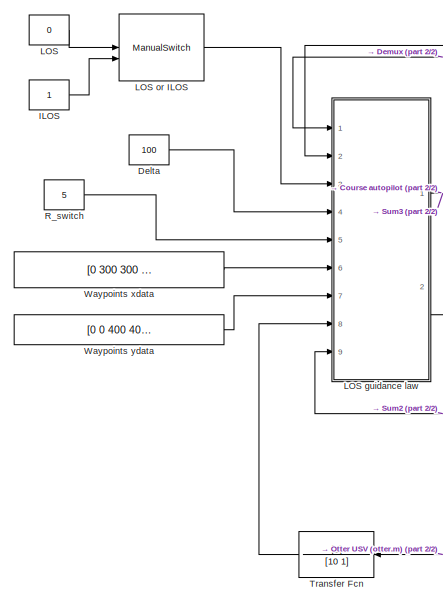
[diagram: root canvas - part 1/2, left side, full height]
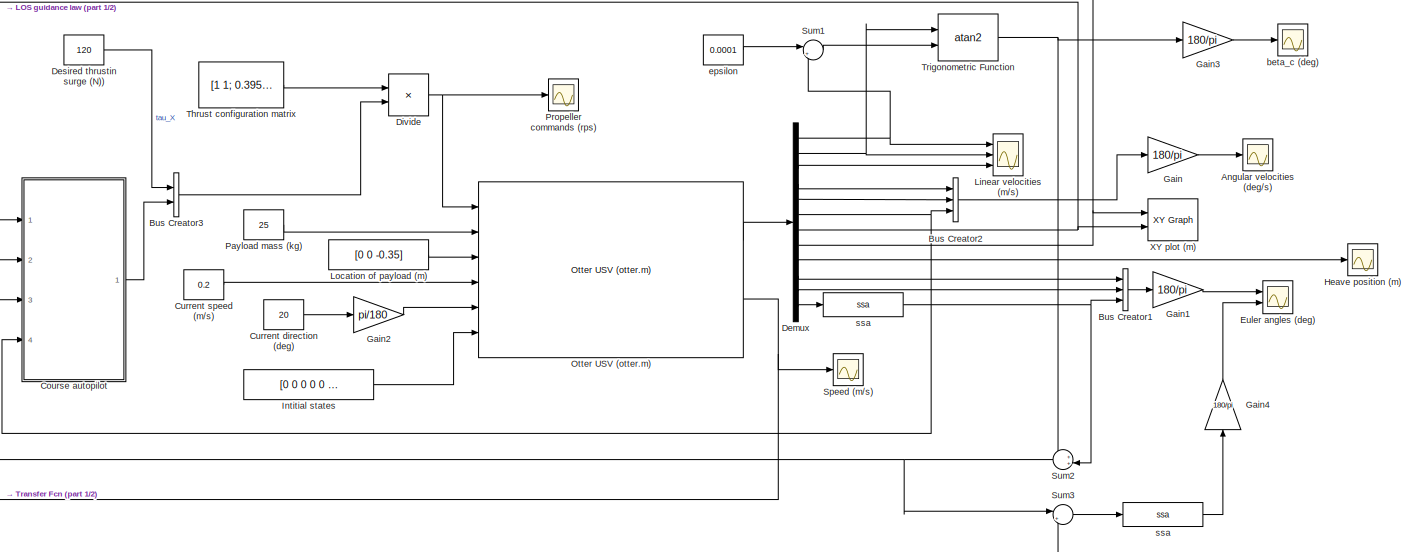
[diagram: root canvas - part 2/2, center side, full height]
MODEL slx_7d4d9d8b1aa5
KIND model
CONFIG AbsTol = auto
CONFIG EnableMultiTasking = off
CONFIG FixedStep = 0.05
CONFIG MaxStep = auto
CONFIG MinStep = auto
CONFIG RelTol = 1e-3
CONFIG SampleTimeConstraint = Unconstrained
CONFIG SolverName = ode4
CONFIG StartTime = 0.0
CONFIG StopTime = 2000
BLOCK [Scope] Angular velocities (deg//s)
  Floating = off
  NumInputPorts = 1
  Ports = [1]
  ScopeSpecificationString = Simulink.scopes.TimeScopeBlockCfg('CurrentConfiguration', extmgr.ConfigurationSet(extmgr.Configuration('Core','General UI',true),extmgr.Configuration('Core','Source UI',true),extmgr.Configuration('Sources','WiredSimulink',true,'DataLoggingVariableName','ScopeData3'),extmgr.Configuration('Visuals','Time Domain',true,'SerializedDisplays',{struct('MinYLimReal','-37.06921','MaxYLimReal','21.94874','YL...<+1463ch>
BLOCK [BusCreator] Bus Creator1
  DisplayOption = bar
  InheritFromInputs = on
  Inputs = 3
  Ports = [3, 1]
BLOCK [BusCreator] Bus Creator2
  DisplayOption = bar
  InheritFromInputs = on
  Inputs = 3
  Ports = [3, 1]
BLOCK [BusCreator] Bus Creator3
  DisplayOption = bar
  InheritFromInputs = on
  Inputs = 2
  Ports = [2, 1]
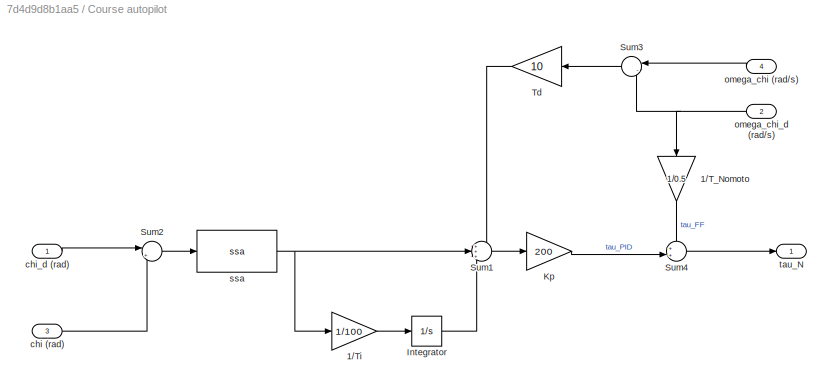
BLOCK [SubSystem] Course autopilot
  Ports = [4, 1]
  RequestExecContextInheritance = off
BLOCK [Gain] Course autopilot/1//T_Nomoto
  Gain = 1/0.5
  NameLocation = right
  OutDataTypeStr = Inherit: Same as input
  ParamDataTypeStr = Inherit: Same as input
  SaturateOnIntegerOverflow = on
BLOCK [Gain] Course autopilot/1//Ti
  Gain = 1/100
  NameLocation = top
  OutDataTypeStr = Inherit: Same as input
  ParamDataTypeStr = Inherit: Same as input
  SaturateOnIntegerOverflow = on
BLOCK [Integrator] Course autopilot/Integrator
  Ports = [1, 1]
BLOCK [Gain] Course autopilot/Kp
  Gain = 200
  NameLocation = top
  OutDataTypeStr = Inherit: Same as input
  ParamDataTypeStr = Inherit: Same as input
  SaturateOnIntegerOverflow = on
BLOCK [Sum] Course autopilot/Sum1
  InputSameDT = on
  Inputs = +++
  OutDataTypeStr = Inherit: Same as first input
  Ports = [3, 1]
  SaturateOnIntegerOverflow = on
BLOCK [Sum] Course autopilot/Sum2
  InputSameDT = on
  Inputs = |+-
  OutDataTypeStr = Inherit: Same as first input
  Ports = [2, 1]
  SaturateOnIntegerOverflow = on
BLOCK [Sum] Course autopilot/Sum3
  InputSameDT = on
  Inputs = |-+
  NameLocation = top
  OutDataTypeStr = Inherit: Same as first input
  Ports = [2, 1]
  SaturateOnIntegerOverflow = on
BLOCK [Sum] Course autopilot/Sum4
  InputSameDT = on
  Inputs = ++|
  OutDataTypeStr = Inherit: Same as first input
  Ports = [2, 1]
  SaturateOnIntegerOverflow = on
BLOCK [Gain] Course autopilot/Td
  Gain = 10
  NameLocation = top
  OutDataTypeStr = Inherit: Same as input
  ParamDataTypeStr = Inherit: Same as input
  SaturateOnIntegerOverflow = on
BLOCK [Inport] Course autopilot/chi (rad)
  Port = 3
BLOCK [Inport] Course autopilot/chi_d (rad)
BLOCK [Inport] Course autopilot/omega_chi (rad//s)
  NameLocation = top
  Port = 4
BLOCK [Inport] Course autopilot/omega_chi_d (rad//s)
  NameLocation = top
  Port = 2
BLOCK [Reference] Course autopilot/ssa   REF=mssSimulink/Utilities/Math Operations/ssa
  Ports = [1, 1]
  SourceBlock = mssSimulink/Utilities/Math Operations/ssa
  SourceType = SubSystem
BLOCK [Outport] Course autopilot/tau_N
BLOCK [Constant] Current direction (deg)
  Value = 20
BLOCK [Constant] Current speed (m//s)
  Value = 0.2
BLOCK [Constant] Delta
  Value = 100
BLOCK [Demux] Demux
  Outputs = 12
  Ports = [1, 12]
BLOCK [Constant] Desired thrustin surge (N))
  Value = 120
BLOCK [Product] Divide
  Inputs = /*
  Multiplication = Matrix(*)
  Ports = [2, 1]
BLOCK [Scope] Euler angles (deg)
  Floating = off
  NumInputPorts = 2
  Ports = [2]
  ScopeSpecificationString = Simulink.scopes.TimeScopeBlockCfg('CurrentConfiguration', extmgr.ConfigurationSet(extmgr.Configuration('Core','General UI',true),extmgr.Configuration('Core','Source UI',true),extmgr.Configuration('Sources','WiredSimulink',true,'DataLoggingVariableName','ScopeData1'),extmgr.Configuration('Visuals','Time Domain',true,'SerializedDisplays',{struct('MinYLimReal','-224.90694','MaxYLimReal','224.98648','...<+2175ch>
BLOCK [Gain] Gain
  Gain = 180/pi
BLOCK [Gain] Gain1
  Gain = 180/pi
BLOCK [Gain] Gain2
  Gain = pi/180
BLOCK [Gain] Gain3
  Gain = 180/pi
BLOCK [Gain] Gain4
  Gain = 180/pi
  NameLocation = right
BLOCK [Scope] Heave position (m)
  Floating = off
  NumInputPorts = 1
  Ports = [1]
  ScopeSpecificationString = Simulink.scopes.TimeScopeBlockCfg('CurrentConfiguration', extmgr.ConfigurationSet(extmgr.Configuration('Core','General UI',true),extmgr.Configuration('Core','Source UI',true),extmgr.Configuration('Sources','WiredSimulink',true,'DataLoggingVariableName','ScopeData4'),extmgr.Configuration('Visuals','Time Domain',true,'SerializedDisplays',{struct('MinYLimReal','0.0303','MaxYLimReal','0.04718','YLabel...<+1498ch>
BLOCK [Constant] ILOS
BLOCK [Constant] Intitial states
  Value = [0 0 0 0 0 0 0 0 0 0 0 0]
BLOCK [Constant] LOS
  Value = 0
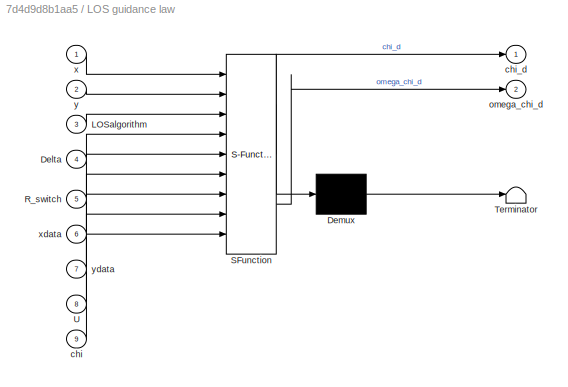
BLOCK [SubSystem] LOS guidance law
  ErrorFcn = Stateflow.Translate.translate
  InitFcn = clear LOSchi
  PermitHierarchicalResolution = ExplicitOnly
  Ports = [9, 2]
  RequestExecContextInheritance = off
  SFBlockType = MATLAB Function
  TreatAsAtomicUnit = on
BLOCK [Demux] LOS guidance law/ Demux 
  Outputs = 1
  Ports = [1, 1]
BLOCK [S-Function] LOS guidance law/ SFunction 
  EnableBusSupport = on
  FunctionName = sf_sfun
  PortCounts = [9 3]
  Ports = [9, 3]
  SFcnIsStateOwnerBlock = off
  SFunctionDeploymentMode = off
  Tag = Stateflow S-Function 2
BLOCK [Terminator] LOS guidance law/ Terminator 
BLOCK [Inport] LOS guidance law/Delta
  Port = 4
BLOCK [Inport] LOS guidance law/LOSalgorithm
  Port = 3
BLOCK [Inport] LOS guidance law/R_switch
  Port = 5
BLOCK [Inport] LOS guidance law/U
  Port = 8
BLOCK [Inport] LOS guidance law/chi
  Port = 9
BLOCK [Outport] LOS guidance law/chi_d
BLOCK [Outport] LOS guidance law/omega_chi_d
  Port = 2
BLOCK [Inport] LOS guidance law/x
BLOCK [Inport] LOS guidance law/xdata
  Port = 6
BLOCK [Inport] LOS guidance law/y
  Port = 2
BLOCK [Inport] LOS guidance law/ydata
  Port = 7
BLOCK [ManualSwitch] LOS or ILOS
BLOCK [Scope] Linear velocities (m//s)
  Floating = off
  NumInputPorts = 3
  Ports = [3]
  ScopeSpecificationString = Simulink.scopes.TimeScopeBlockCfg('CurrentConfiguration', extmgr.ConfigurationSet(extmgr.Configuration('Core','General UI',true),extmgr.Configuration('Core','Source UI',true),extmgr.Configuration('Sources','WiredSimulink',true,'DataLoggingVariableName','ScopeData2'),extmgr.Configuration('Visuals','Time Domain',true,'SerializedDisplays',{struct('MinYLimReal','-0.22359','MaxYLimReal','1.70743','YLab...<+3091ch>
BLOCK [Constant] Location of payload (m)
  Value = [0 0 -0.35]
BLOCK [Reference] Otter USV (otter.m)   REF=mssSimulink/Marine craft models/Otter USV (otter.m)
  Ports = [6, 2]
  SourceBlock = mssSimulink/Marine craft models/Otter USV (otter.m)
BLOCK [Constant] Payload mass (kg)
  Value = 25
BLOCK [Scope] Propeller commands (rps)
  Floating = off
  NumInputPorts = 1
  Ports = [1]
  ScopeSpecificationString = Simulink.scopes.TimeScopeBlockCfg('CurrentConfiguration', extmgr.ConfigurationSet(extmgr.Configuration('Core','General UI',true),extmgr.Configuration('Core','Source UI',true),extmgr.Configuration('Sources','WiredSimulink',true,'DataLoggingVariableName','ScopeData1'),extmgr.Configuration('Visuals','Time Domain',true,'SerializedDisplays',{struct('MinYLimReal','-1814.8901','MaxYLimReal','1934.8901','...<+1469ch>
BLOCK [Constant] R_switch
  Value = 5
BLOCK [Scope] Speed (m//s)
  Floating = off
  NumInputPorts = 1
  Ports = [1]
  ScopeSpecificationString = Simulink.scopes.TimeScopeBlockCfg('CurrentConfiguration', extmgr.ConfigurationSet(extmgr.Configuration('Core','General UI',true),extmgr.Configuration('Core','Source UI',true),extmgr.Configuration('Sources','WiredSimulink',true),extmgr.Configuration('Visuals','Time Domain',true,'SerializedDisplays',{struct('MinYLimReal','0.87516','MaxYLimReal','1.14824','YLabelReal','','MinYLimMag','0.87516','MaxYL...<+1414ch>
BLOCK [Sum] Sum1
  InputSameDT = on
  Inputs = |++
  OutDataTypeStr = Inherit: Same as first input
  Ports = [2, 1]
  SaturateOnIntegerOverflow = on
BLOCK [Sum] Sum2
  InputSameDT = on
  Inputs = ++|
  NameLocation = top
  OutDataTypeStr = Inherit: Same as first input
  Ports = [2, 1]
  SaturateOnIntegerOverflow = on
BLOCK [Sum] Sum3
  InputSameDT = on
  Inputs = |+-
  OutDataTypeStr = Inherit: Same as first input
  Ports = [2, 1]
  SaturateOnIntegerOverflow = on
BLOCK [Constant] Thrust configuration matrix
  Value = [1 1; 0.395 -0.395]
BLOCK [TransferFcn] Transfer Fcn
  Denominator = [10 1]
  NameLocation = top
BLOCK [Trigonometry] Trigonometric Function
  Operator = atan2
  Ports = [2, 1]
BLOCK [Constant] Waypoints xdata
  Value = [0 300 300 0 0 300 300 0 0 200 200]'
BLOCK [Constant] Waypoints ydata
  Value = [0 0 400 400 -100 -100 300 300 0 0 200]'
BLOCK [Reference] XY plot (m)  REF=simulink/Sinks/XY Graph
  Ports = [2]
  SourceBlock = simulink/Sinks/XY Graph
  SourceProductBaseCode = SL
  SourceType = XY scope.
BLOCK [Scope] beta_c (deg)
  Floating = off
  NumInputPorts = 1
  Ports = [1]
  ScopeSpecificationString = Simulink.scopes.TimeScopeBlockCfg('CurrentConfiguration', extmgr.ConfigurationSet(extmgr.Configuration('Core','General UI',true),extmgr.Configuration('Core','Source UI',true),extmgr.Configuration('Sources','WiredSimulink',true,'DataLoggingVariableName','ScopeData1'),extmgr.Configuration('Visuals','Time Domain',true,'SerializedDisplays',{struct('MinYLimReal','-59.90989','MaxYLimReal','27.66045','YL...<+1592ch>
BLOCK [Constant] epsilon
  Value = 0.0001
BLOCK [Reference] ssa   REF=mssSimulink/Utilities/Math Operations/ssa
  Ports = [1, 1]
  SourceBlock = mssSimulink/Utilities/Math Operations/ssa
  SourceType = SubSystem
BLOCK [Reference] ssa     REF=mssSimulink/Utilities/Math Operations/ssa
  Ports = [1, 1]
  SourceBlock = mssSimulink/Utilities/Math Operations/ssa
  SourceType = SubSystem
LINE Bus Creator1:1 -> Gain1:1
LINE Bus Creator2:1 -> Gain:1
LINE Bus Creator3:1 -> Divide:2
LINE Course autopilot/1//T_Nomoto:1 -> Course autopilot/Sum4:1
LINE Course autopilot/1//Ti:1 -> Course autopilot/Integrator:1
LINE Course autopilot/Integrator:1 -> Course autopilot/Sum1:3
LINE Course autopilot/Kp:1 -> Course autopilot/Sum4:2
LINE Course autopilot/Sum1:1 -> Course autopilot/Kp:1
LINE Course autopilot/Sum2:1 -> Course autopilot/ssa :1
LINE Course autopilot/Sum3:1 -> Course autopilot/Td:1
LINE Course autopilot/Sum4:1 -> Course autopilot/tau_N:1
LINE Course autopilot/Td:1 -> Course autopilot/Sum1:1
LINE Course autopilot/chi (rad):1 -> Course autopilot/Sum2:2
LINE Course autopilot/chi_d (rad):1 -> Course autopilot/Sum2:1
LINE Course autopilot/omega_chi (rad//s):1 -> Course autopilot/Sum3:1
NET Course autopilot/omega_chi_d (rad//s):1 -> Course autopilot/1//T_Nomoto:1, Course autopilot/Sum3:2
NET Course autopilot/ssa :1 -> Course autopilot/1//Ti:1, Course autopilot/Sum1:2
LINE Course autopilot:1 -> Bus Creator3:2
LINE Current direction (deg):1 -> Gain2:1
LINE Current speed (m//s):1 -> Otter USV (otter.m) :4
LINE Delta:1 -> LOS guidance law:4
NET Demux:1 -> Linear velocities (m//s):1, Sum1:2
LINE Demux:10 -> Bus Creator1:1
LINE Demux:11 -> Bus Creator1:2
LINE Demux:12 -> ssa   :1
NET Demux:2 -> Linear velocities (m//s):2, Trigonometric Function:1
LINE Demux:3 -> Linear velocities (m//s):3
LINE Demux:4 -> Bus Creator2:1
LINE Demux:5 -> Bus Creator2:2
NET Demux:6 -> Bus Creator2:3, Course autopilot:4
NET Demux:7 -> LOS guidance law:1, XY plot (m):2
NET Demux:8 -> LOS guidance law:2, XY plot (m):1
LINE Demux:9 -> Heave position (m):1
LINE Desired thrustin surge (N)):1 -> Bus Creator3:1
NET Divide:1 -> Otter USV (otter.m) :1, Propeller commands (rps):1
LINE Gain1:1 -> Euler angles (deg):1
LINE Gain2:1 -> Otter USV (otter.m) :5
LINE Gain3:1 -> beta_c (deg):1
LINE Gain4:1 -> Euler angles (deg):2
LINE Gain:1 -> Angular velocities (deg//s):1
LINE ILOS:1 -> LOS or ILOS:2
LINE Intitial states:1 -> Otter USV (otter.m) :6
NET LOS guidance law:1 -> Course autopilot:1, Sum3:2
LINE LOS guidance law:2 -> Course autopilot:2
LINE LOS or ILOS:1 -> LOS guidance law:3
LINE LOS:1 -> LOS or ILOS:1
LINE Location of payload (m):1 -> Otter USV (otter.m) :3
LINE Otter USV (otter.m) :1 -> Demux:1
NET Otter USV (otter.m) :2 -> Speed (m//s):1, Transfer Fcn:1
LINE Payload mass (kg):1 -> Otter USV (otter.m) :2
LINE R_switch:1 -> LOS guidance law:5
LINE Sum1:1 -> Trigonometric Function:2
NET Sum2:1 -> Course autopilot:3, LOS guidance law:9, Sum3:1
LINE Sum3:1 -> ssa :1
LINE Thrust configuration matrix:1 -> Divide:1
LINE Transfer Fcn:1 -> LOS guidance law:8
NET Trigonometric Function:1 -> Gain3:1, Sum2:1
LINE Waypoints xdata:1 -> LOS guidance law:6
LINE Waypoints ydata:1 -> LOS guidance law:7
LINE epsilon:1 -> Sum1:1
NET ssa   :1 -> Bus Creator1:3, Sum2:2
LINE ssa :1 -> Gain4:1
note: NET lines group one-source signal fan-out (src -> all destinations, sorted); 1:1 wires keep LINE
CHART LOS guidance law states=1 transitions=1
  STATE_LABEL 'eML_blk_kernel()'
  STATE_LABEL 'SCRIPT:\nfunction [chi_d, omega_chi_d] = fcn(x,y,LOSalgorithm,Delta,R_switch,xdata,ydata,U,chi)\n\n% waypoints\nwpt.pos.x = xdata;\nwpt.pos.y = ydata;\n\nif ( LOSalgorithm == 0 )        % Proportional LOS guidance law\n     \n    [chi_d, omega_chi_d] = LOSchi(x,y,Delta,R_switch,wpt,U,chi);\n    \nelse                            % ILOS guidance law\n    \n    % integral gain constant Ki = kappa * Kp\n    kappa =...<+213ch>'
CHART  states=0 transitions=0
